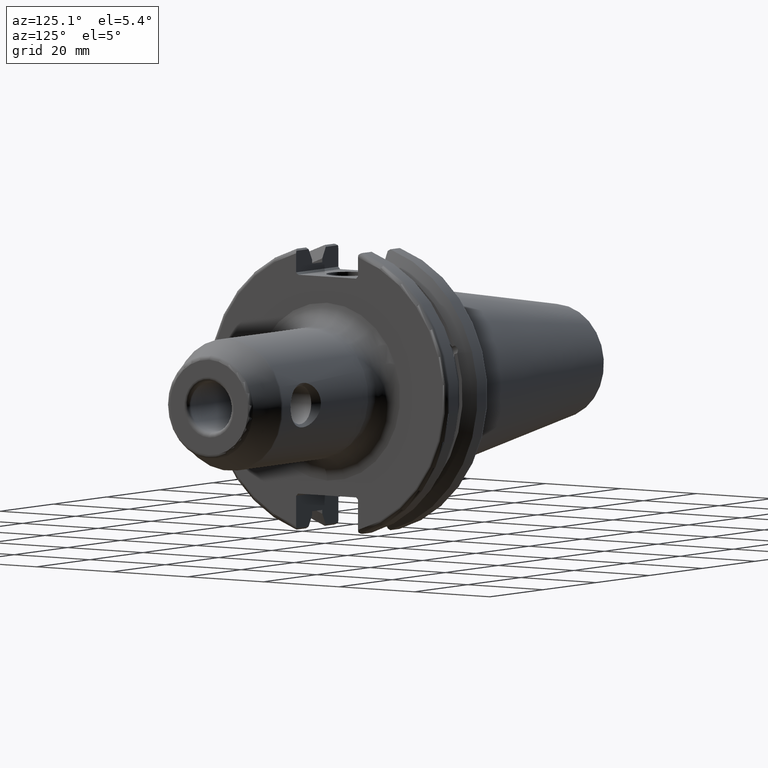
[diagram: clean part render]
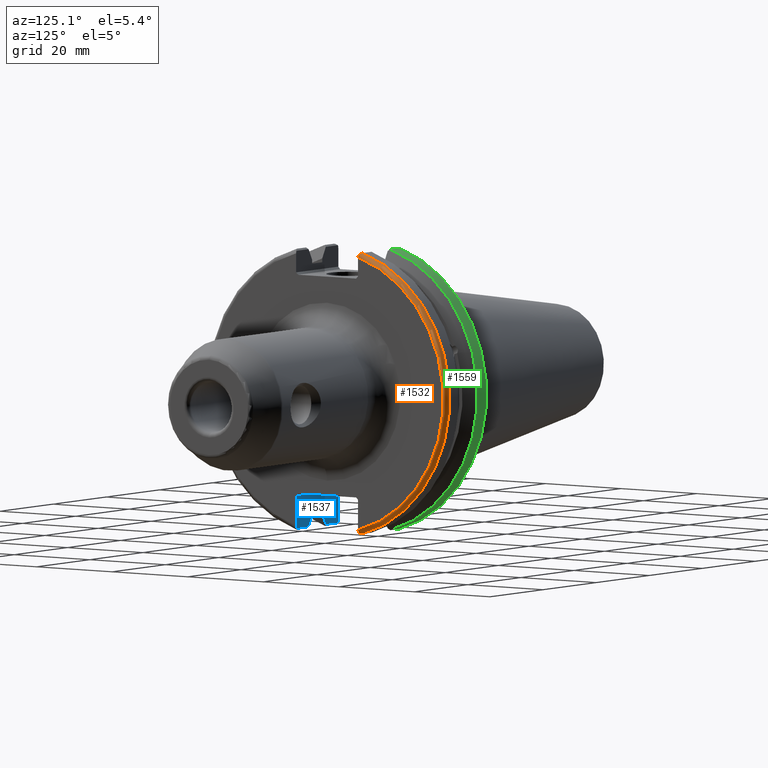
[diagram: same view with three faces highlighted in distinct colors, each labeled with its STEP entity id]
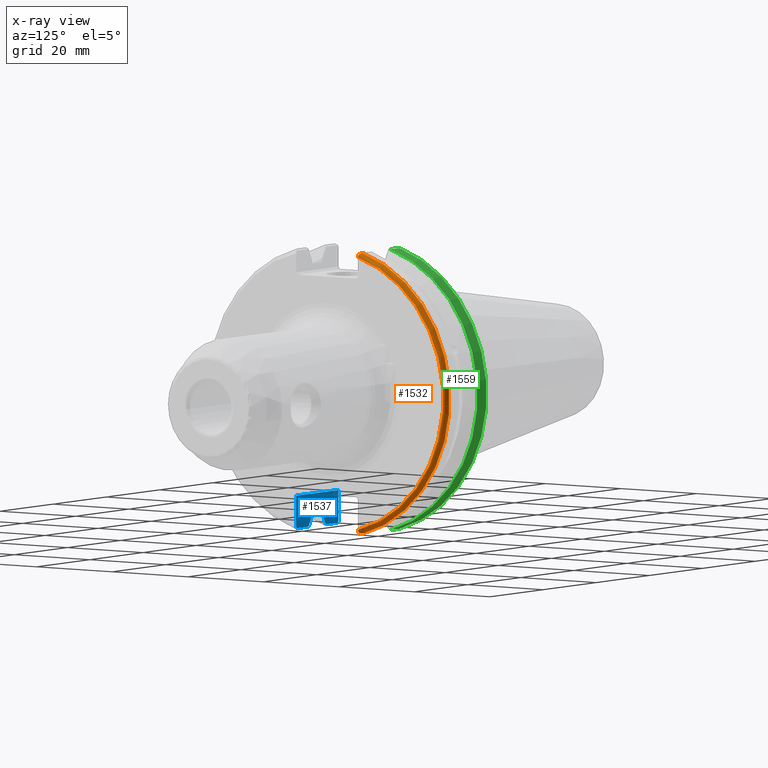
[diagram: x-ray of the same camera — body ghosted, the three highlighted faces saturated]
A machine part, auxiliary view with three faces highlighted in distinct colors.
The next image is the same camera in x-ray (body ghosted, the three faces saturated) — at least one of them is partly hidden behind the body in this view.
Their STEP definitions:

[orange] entity #1532 — the highlighted toroidal blend (fillet) surface has major radius 30.75 mm and minor (blend) radius 1 mm.
#80=B_SPLINE_CURVE_WITH_KNOTS('',3,(#2809,#2810,#2811,#2812,#2813,#2814),
 .UNSPECIFIED.,.F.,.F.,(4,2,4),(0.0977210450333169,0.111963554372601,0.150804064902975),
 .UNSPECIFIED.);
#81=B_SPLINE_CURVE_WITH_KNOTS('',3,(#2816,#2817,#2818,#2819,#2820,#2821),
 .UNSPECIFIED.,.F.,.F.,(4,2,4),(0.452741154494497,0.491581665024871,0.505824174364157),
 .UNSPECIFIED.);
#82=B_SPLINE_CURVE_WITH_KNOTS('',3,(#2823,#2824,#2825,#2826,#2827,#2828,
#2829,#2830),.UNSPECIFIED.,.F.,.F.,(4,2,2,4),(-0.104302157163828,-0.0778717450894463,
-0.0364423539742873,0.),.UNSPECIFIED.);
#83=B_SPLINE_CURVE_WITH_KNOTS('',3,(#2833,#2834,#2835,#2836,#2837,#2838,
#2839,#2840),.UNSPECIFIED.,.F.,.F.,(4,2,2,4),(0.,0.0343524753874978,0.0729784742461449,
0.104180282751877),.UNSPECIFIED.);
#400=FACE_OUTER_BOUND('',#498,.T.);
#498=EDGE_LOOP('',(#1261,#1262,#1263,#1264,#1265,#1266));
#563=CIRCLE('',#1626,30.75);
#597=CIRCLE('',#1712,31.75);
#638=VERTEX_POINT('',#2358);
#639=VERTEX_POINT('',#2359);
#735=VERTEX_POINT('',#2808);
#736=VERTEX_POINT('',#2815);
#737=VERTEX_POINT('',#2822);
#738=VERTEX_POINT('',#2831);
#801=EDGE_CURVE('',#638,#639,#563,.T.);
#928=EDGE_CURVE('',#735,#638,#80,.T.);
#929=EDGE_CURVE('',#639,#736,#81,.T.);
#930=EDGE_CURVE('',#736,#737,#82,.T.);
#931=EDGE_CURVE('',#737,#738,#597,.T.);
#932=EDGE_CURVE('',#738,#735,#83,.T.);
#1261=ORIENTED_EDGE('',*,*,#928,.T.);
#1262=ORIENTED_EDGE('',*,*,#801,.T.);
#1263=ORIENTED_EDGE('',*,*,#929,.T.);
#1264=ORIENTED_EDGE('',*,*,#930,.T.);
#1265=ORIENTED_EDGE('',*,*,#931,.T.);
#1266=ORIENTED_EDGE('',*,*,#932,.T.);
#1485=TOROIDAL_SURFACE('',#1711,30.75,1.);
#1532=ADVANCED_FACE('',(#400),#1485,.T.);
#1626=AXIS2_PLACEMENT_3D('',#2360,#1837,#1838);
#1711=AXIS2_PLACEMENT_3D('',#2807,#2060,#2061);
#1712=AXIS2_PLACEMENT_3D('',#2832,#2062,#2063);
#1837=DIRECTION('center_axis',(-1.,0.,0.));
#1838=DIRECTION('ref_axis',(0.,1.,-6.12323399573677E-17));
#2060=DIRECTION('center_axis',(1.,0.,0.));
#2061=DIRECTION('ref_axis',(0.,0.,-1.));
#2062=DIRECTION('center_axis',(1.,0.,0.));
#2063=DIRECTION('ref_axis',(0.,1.,-6.12323399573677E-17));
#2358=CARTESIAN_POINT('',(19.05,8.19,29.6392712461019));
#2359=CARTESIAN_POINT('',(19.05,8.19,-29.6392712461019));
#2360=CARTESIAN_POINT('Origin',(19.05,0.,0.));
#2807=CARTESIAN_POINT('Origin',(18.05,0.,0.));
#2808=CARTESIAN_POINT('',(18.9058722749097,8.19,30.1755016258903));
#2809=CARTESIAN_POINT('Ctrl Pts',(18.9058722749097,8.19,30.1755016258903));
#2810=CARTESIAN_POINT('Ctrl Pts',(18.9318163728133,8.19,30.131014531546));
#2811=CARTESIAN_POINT('Ctrl Pts',(18.9539643471756,8.19,30.0852355256475));
#2812=CARTESIAN_POINT('Ctrl Pts',(19.020485567083,8.19,29.9212724384851));
#2813=CARTESIAN_POINT('Ctrl Pts',(19.05,8.19,29.7687396145364));
#2814=CARTESIAN_POINT('Ctrl Pts',(19.05,8.19,29.6392712461019));
#2815=CARTESIAN_POINT('',(18.9058722749097,8.19,-30.1755016258903));
#2816=CARTESIAN_POINT('Ctrl Pts',(19.05,8.19,-29.6392712461019));
#2817=CARTESIAN_POINT('Ctrl Pts',(19.05,8.19,-29.7687396145364));
#2818=CARTESIAN_POINT('Ctrl Pts',(19.0204855670831,8.19,-29.9212724384851));
#2819=CARTESIAN_POINT('Ctrl Pts',(18.9539643471756,8.19,-30.0852355256475));
#2820=CARTESIAN_POINT('Ctrl Pts',(18.9318163728133,8.19,-30.131014531546));
#2821=CARTESIAN_POINT('Ctrl Pts',(18.9058722749097,8.19,-30.1755016258903));
#2822=CARTESIAN_POINT('',(18.05,8.67204822802685,-30.5427254764662));
#2823=CARTESIAN_POINT('Ctrl Pts',(18.9058722749097,8.19,-30.1755016258903));
#2824=CARTESIAN_POINT('Ctrl Pts',(18.8644673620074,8.25871605728282,-30.2278494485451));
#2825=CARTESIAN_POINT('Ctrl Pts',(18.8119751533981,8.32529543089522,-30.2785695477496));
#2826=CARTESIAN_POINT('Ctrl Pts',(18.6711011886212,8.46607530335799,-30.3858155116254));
#2827=CARTESIAN_POINT('Ctrl Pts',(18.545044361706,8.551646780666,-30.4510037761381));
#2828=CARTESIAN_POINT('Ctrl Pts',(18.3129472218859,8.64410239894262,-30.5214363722497));
#2829=CARTESIAN_POINT('Ctrl Pts',(18.1714745132476,8.67204822802685,-30.5427254764662));
#2830=CARTESIAN_POINT('Ctrl Pts',(18.05,8.67204822802685,-30.5427254764662));
#2831=CARTESIAN_POINT('',(18.05,8.67204822802685,30.5427254764662));
#2832=CARTESIAN_POINT('Origin',(18.05,0.,0.));
#2833=CARTESIAN_POINT('Ctrl Pts',(18.05,8.67204822802685,30.5427254764662));
#2834=CARTESIAN_POINT('Ctrl Pts',(18.1645082512917,8.67204822802685,30.5427254764662));
#2835=CARTESIAN_POINT('Ctrl Pts',(18.2983170433775,8.6471881193939,30.5237870709558));
#2836=CARTESIAN_POINT('Ctrl Pts',(18.5184414294771,8.56482138642532,30.4610401774263));
#2837=CARTESIAN_POINT('Ctrl Pts',(18.6396724190507,8.48862804755883,30.4029961692546));
#2838=CARTESIAN_POINT('Ctrl Pts',(18.7926702662319,8.34909446036477,30.2966996242308));
#2839=CARTESIAN_POINT('Ctrl Pts',(18.8574463042989,8.27036828330781,30.2367261024977));
#2840=CARTESIAN_POINT('Ctrl Pts',(18.9058722749097,8.19,30.1755016258903));

[blue] entity #1537 — the highlighted planar face has unit normal (0, -1, 0).
#15=(
BOUNDED_CURVE()
B_SPLINE_CURVE(2,(#2591,#2592,#2593),.UNSPECIFIED.,.F.,.F.)
B_SPLINE_CURVE_WITH_KNOTS((3,3),(0.,0.276549142795512),.UNSPECIFIED.)
CURVE()
GEOMETRIC_REPRESENTATION_ITEM()
RATIONAL_B_SPLINE_CURVE((1.,1.00095203904184,1.00031614445102))
REPRESENTATION_ITEM('')
);
#26=(
BOUNDED_CURVE()
B_SPLINE_CURVE(2,(#2920,#2921,#2922),.UNSPECIFIED.,.F.,.F.)
B_SPLINE_CURVE_WITH_KNOTS((3,3),(0.0550586467392022,0.33160778953585),
 .UNSPECIFIED.)
CURVE()
GEOMETRIC_REPRESENTATION_ITEM()
RATIONAL_B_SPLINE_CURVE((1.00031614445148,1.00095203904325,1.))
REPRESENTATION_ITEM('')
);
#85=B_SPLINE_CURVE_WITH_KNOTS('',3,(#2864,#2865,#2866,#2867,#2868,#2869),
 .UNSPECIFIED.,.F.,.F.,(4,2,4),(0.097738363091569,0.112311108149119,0.150804350305566),
 .UNSPECIFIED.);
#90=B_SPLINE_CURVE_WITH_KNOTS('',3,(#2925,#2926,#2927,#2928,#2929,#2930),
 .UNSPECIFIED.,.F.,.F.,(4,2,4),(0.452741154494498,0.491581665024872,0.505824174364157),
 .UNSPECIFIED.);
#104=LINE('',#2374,#196);
#124=LINE('',#2612,#216);
#125=LINE('',#2616,#217);
#126=LINE('',#2620,#218);
#150=LINE('',#2802,#242);
#162=LINE('',#2918,#254);
#163=LINE('',#2924,#255);
#164=LINE('',#2931,#256);
#196=VECTOR('',#1846,10.);
#216=VECTOR('',#1938,10.);
#217=VECTOR('',#1943,10.);
#218=VECTOR('',#1948,10.);
#242=VECTOR('',#2054,10.);
#254=VECTOR('',#2086,10.);
#255=VECTOR('',#2087,10.);
#256=VECTOR('',#2088,10.);
#337=PLANE('',#1718);
#405=FACE_OUTER_BOUND('',#503,.T.);
#503=EDGE_LOOP('',(#1301,#1302,#1303,#1304,#1305,#1306,#1307,#1308,#1309,
#1310,#1311,#1312));
#645=VERTEX_POINT('',#2371);
#646=VERTEX_POINT('',#2373);
#679=VERTEX_POINT('',#2588);
#680=VERTEX_POINT('',#2590);
#685=VERTEX_POINT('',#2610);
#686=VERTEX_POINT('',#2614);
#687=VERTEX_POINT('',#2618);
#723=VERTEX_POINT('',#2780);
#733=VERTEX_POINT('',#2800);
#742=VERTEX_POINT('',#2863);
#751=VERTEX_POINT('',#2919);
#752=VERTEX_POINT('',#2923);
#808=EDGE_CURVE('',#645,#646,#104,.T.);
#855=EDGE_CURVE('',#679,#680,#15,.T.);
#862=EDGE_CURVE('',#685,#679,#124,.T.);
#864=EDGE_CURVE('',#686,#685,#125,.T.);
#866=EDGE_CURVE('',#687,#686,#126,.T.);
#925=EDGE_CURVE('',#733,#723,#150,.T.);
#940=EDGE_CURVE('',#742,#645,#85,.T.);
#953=EDGE_CURVE('',#680,#742,#162,.T.);
#954=EDGE_CURVE('',#751,#687,#26,.T.);
#955=EDGE_CURVE('',#752,#751,#163,.T.);
#956=EDGE_CURVE('',#723,#752,#90,.T.);
#957=EDGE_CURVE('',#646,#733,#164,.T.);
#1301=ORIENTED_EDGE('',*,*,#940,.F.);
#1302=ORIENTED_EDGE('',*,*,#953,.F.);
#1303=ORIENTED_EDGE('',*,*,#855,.F.);
#1304=ORIENTED_EDGE('',*,*,#862,.F.);
#1305=ORIENTED_EDGE('',*,*,#864,.F.);
#1306=ORIENTED_EDGE('',*,*,#866,.F.);
#1307=ORIENTED_EDGE('',*,*,#954,.F.);
#1308=ORIENTED_EDGE('',*,*,#955,.F.);
#1309=ORIENTED_EDGE('',*,*,#956,.F.);
#1310=ORIENTED_EDGE('',*,*,#925,.F.);
#1311=ORIENTED_EDGE('',*,*,#957,.F.);
#1312=ORIENTED_EDGE('',*,*,#808,.F.);
#1537=ADVANCED_FACE('',(#405),#337,.F.);
#1718=AXIS2_PLACEMENT_3D('',#2917,#2084,#2085);
#1846=DIRECTION('',(0.,0.,1.));
#1938=DIRECTION('',(0.,0.,-1.));
#1943=DIRECTION('',(1.,0.,0.));
#1948=DIRECTION('',(0.,0.,1.));
#2054=DIRECTION('',(0.,0.,-1.));
#2084=DIRECTION('center_axis',(0.,-1.,0.));
#2085=DIRECTION('ref_axis',(-1.,0.,0.));
#2086=DIRECTION('',(1.,0.,0.));
#2087=DIRECTION('',(1.,0.,0.));
#2088=DIRECTION('',(-1.,0.,0.));
#2371=CARTESIAN_POINT('',(19.05,-8.19,-29.6392712461019));
#2373=CARTESIAN_POINT('',(19.05,-8.19,-23.1));
#2374=CARTESIAN_POINT('',(19.05,-8.19,-11.3));
#2588=CARTESIAN_POINT('',(13.0491,-8.19,-27.7771386827498));
#2590=CARTESIAN_POINT('',(14.3815146964874,-8.19,-30.1755016258903));
#2591=CARTESIAN_POINT('Ctrl Pts',(13.0491,-8.19,-27.7771386827498));
#2592=CARTESIAN_POINT('Ctrl Pts',(13.68773643849,-8.19,-28.9303689539956));
#2593=CARTESIAN_POINT('Ctrl Pts',(14.3815146964874,-8.19,-30.1755016258903));
#2610=CARTESIAN_POINT('',(13.0491,-8.19,-26.932255754021));
#2612=CARTESIAN_POINT('',(13.0491,-8.19,-11.3));
#2614=CARTESIAN_POINT('',(9.2191,-8.19,-26.932255754021));
#2616=CARTESIAN_POINT('',(11.1341,-8.19,-26.932255754021));
#2618=CARTESIAN_POINT('',(9.2191,-8.19,-27.7771386827498));
#2620=CARTESIAN_POINT('',(9.2191,-8.19,-11.3));
#2780=CARTESIAN_POINT('',(3.175,-8.19,-29.6392712461019));
#2800=CARTESIAN_POINT('',(3.175,-8.19,-23.1));
#2802=CARTESIAN_POINT('',(3.175,-8.19,-11.3));
#2863=CARTESIAN_POINT('',(18.9058722749097,-8.19,-30.1755016258903));
#2864=CARTESIAN_POINT('Ctrl Pts',(18.9058722749097,-8.19,-30.1755016258903));
#2865=CARTESIAN_POINT('Ctrl Pts',(18.9324477233044,-8.19,-30.1299319366157));
#2866=CARTESIAN_POINT('Ctrl Pts',(18.9550700364447,-8.19,-30.0829389905409));
#2867=CARTESIAN_POINT('Ctrl Pts',(19.0210043632013,-8.19,-29.9188002007263));
#2868=CARTESIAN_POINT('Ctrl Pts',(19.05,-8.19,-29.76758205329));
#2869=CARTESIAN_POINT('Ctrl Pts',(19.05,-8.19,-29.6392712461019));
#2917=CARTESIAN_POINT('Origin',(20.05,-8.19,-22.6));
#2918=CARTESIAN_POINT('',(16.8551333845378,-8.19,-30.1755016258903));
#2919=CARTESIAN_POINT('',(7.88668530351256,-8.19,-30.1755016258903));
#2920=CARTESIAN_POINT('Ctrl Pts',(7.88668530351256,-8.19,-30.1755016258903));
#2921=CARTESIAN_POINT('Ctrl Pts',(8.5804635615235,-8.19,-28.9303689539712));
#2922=CARTESIAN_POINT('Ctrl Pts',(9.2191,-8.19,-27.7771386827498));
#2923=CARTESIAN_POINT('',(3.31912772509028,-8.19,-30.1755016258903));
#2924=CARTESIAN_POINT('',(5.39146661546218,-8.19,-30.1755016258903));
#2925=CARTESIAN_POINT('Ctrl Pts',(3.175,-8.19,-29.6392712461018));
#2926=CARTESIAN_POINT('Ctrl Pts',(3.175,-8.19,-29.7687396145364));
#2927=CARTESIAN_POINT('Ctrl Pts',(3.20451443291695,-8.19,-29.9212724384851));
#2928=CARTESIAN_POINT('Ctrl Pts',(3.27103565282437,-8.19,-30.0852355256475));
#2929=CARTESIAN_POINT('Ctrl Pts',(3.29318362718666,-8.19,-30.131014531546));
#2930=CARTESIAN_POINT('Ctrl Pts',(3.31912772509028,-8.19,-30.1755016258903));
#2931=CARTESIAN_POINT('',(17.87875,-8.19,-23.1));

[green] entity #1559 — the highlighted cylindrical surface (partial cylindrical patch) has radius 31.75 mm, axis along (1, 0, 0).
#167=LINE('',#2994,#259);
#182=LINE('',#3047,#274);
#259=VECTOR('',#2109,10.);
#274=VECTOR('',#2168,10.);
#302=CYLINDRICAL_SURFACE('',#1750,31.75);
#427=FACE_OUTER_BOUND('',#526,.T.);
#526=EDGE_LOOP('',(#1409,#1410,#1411,#1412));
#583=CIRCLE('',#1686,31.75);
#601=CIRCLE('',#1726,31.75);
#708=VERTEX_POINT('',#2729);
#709=VERTEX_POINT('',#2733);
#758=VERTEX_POINT('',#2968);
#759=VERTEX_POINT('',#2977);
#894=EDGE_CURVE('',#708,#709,#583,.T.);
#967=EDGE_CURVE('',#758,#759,#601,.T.);
#970=EDGE_CURVE('',#759,#708,#167,.T.);
#994=EDGE_CURVE('',#709,#758,#182,.T.);
#1409=ORIENTED_EDGE('',*,*,#967,.F.);
#1410=ORIENTED_EDGE('',*,*,#994,.F.);
#1411=ORIENTED_EDGE('',*,*,#894,.F.);
#1412=ORIENTED_EDGE('',*,*,#970,.F.);
#1559=ADVANCED_FACE('',(#427),#302,.T.);
#1686=AXIS2_PLACEMENT_3D('',#2734,#1993,#1994);
#1726=AXIS2_PLACEMENT_3D('',#2978,#2105,#2106);
#1750=AXIS2_PLACEMENT_3D('',#3048,#2169,#2170);
#1993=DIRECTION('center_axis',(1.,0.,0.));
#1994=DIRECTION('ref_axis',(0.,0.,-1.));
#2105=DIRECTION('center_axis',(-1.,0.,0.));
#2106=DIRECTION('ref_axis',(0.,1.,1.60812264967664E-16));
#2109=DIRECTION('',(1.,0.,0.));
#2168=DIRECTION('',(-1.,0.,0.));
#2169=DIRECTION('center_axis',(1.,0.,0.));
#2170=DIRECTION('ref_axis',(0.,1.,0.));
#2729=CARTESIAN_POINT('',(7.60793323092436,8.67204822802685,-30.5427254764662));
#2733=CARTESIAN_POINT('',(7.60793323092436,8.67204822802685,30.5427254764662));
#2734=CARTESIAN_POINT('Origin',(7.60793323092436,0.,0.));
#2968=CARTESIAN_POINT('',(4.175,8.67204822802685,30.5427254764662));
#2977=CARTESIAN_POINT('',(4.175,8.67204822802685,-30.5427254764662));
#2978=CARTESIAN_POINT('Origin',(4.175,0.,0.));
#2994=CARTESIAN_POINT('',(5.39146661546218,8.67204822802685,-30.5427254764662));
#3047=CARTESIAN_POINT('',(5.39146661546218,8.67204822802685,30.5427254764662));
#3048=CARTESIAN_POINT('Origin',(5.39146661546218,0.,0.));